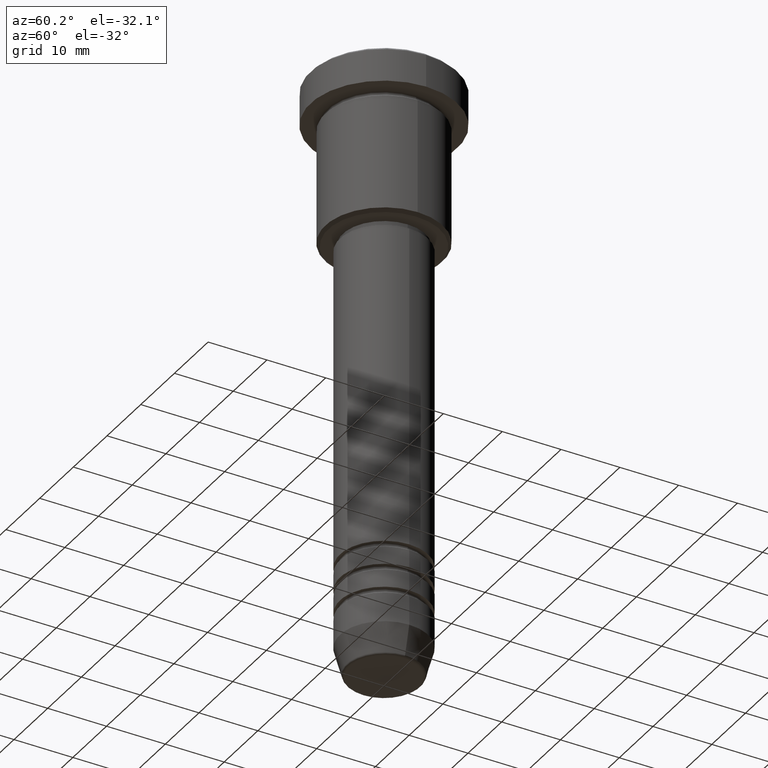
[diagram: clean part render]
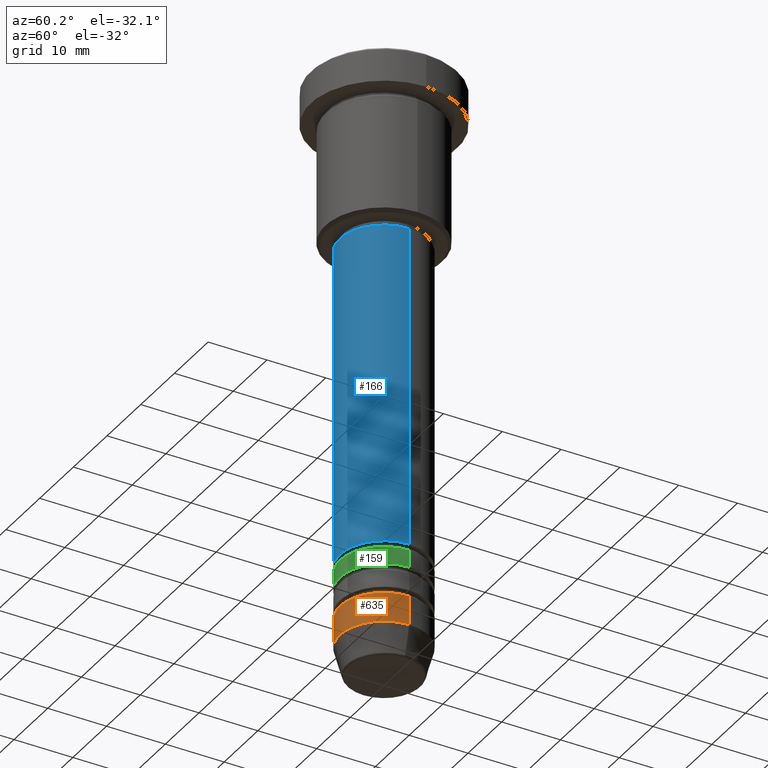
[diagram: same view with three faces highlighted in distinct colors, each labeled with its STEP entity id]
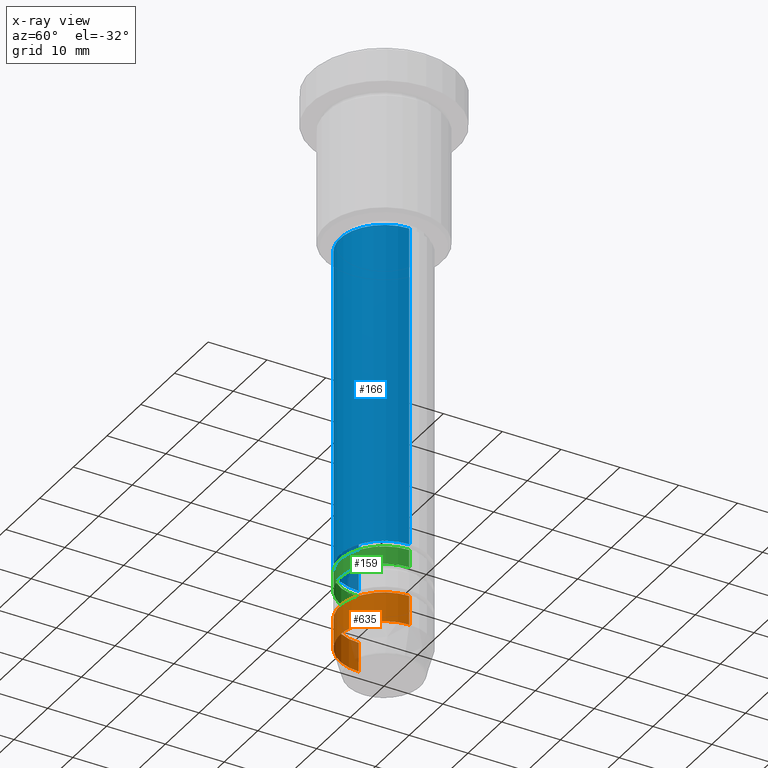
[diagram: x-ray of the same camera — body ghosted, the three highlighted faces saturated]
A machine part, auxiliary view with three faces highlighted in distinct colors.
The next image is the same camera in x-ray (body ghosted, the three faces saturated) — at least one of them is partly hidden behind the body in this view.
Their STEP definitions:

[orange] entity #635 — the highlighted cylindrical surface (partial cylindrical patch) has radius 7.5 mm, axis along (-0, -0, 1).
#46 = DIRECTION ( 'NONE',  ( 1.000000000000000000, 0.000000000000000000, 0.000000000000000000 ) ) ;
#72 = FACE_OUTER_BOUND ( 'NONE', #648, .T. ) ;
#93 = EDGE_CURVE ( 'NONE', #738, #176, #661, .T. ) ;
#127 = CARTESIAN_POINT ( 'NONE',  ( 0.000000000000000000, 0.000000000000000000, -92.00000000000000000 ) ) ;
#156 = CARTESIAN_POINT ( 'NONE',  ( 0.000000000000000000, 0.000000000000000000, -97.00000000000000000 ) ) ;
#176 = VERTEX_POINT ( 'NONE', #319 ) ;
#227 = CARTESIAN_POINT ( 'NONE',  ( -7.500000000000000000, 9.184850993605147944E-16, 0.000000000000000000 ) ) ;
#237 = LINE ( 'NONE', #698, #926 ) ;
#240 = EDGE_CURVE ( 'NONE', #738, #565, #1044, .T. ) ;
#255 = VERTEX_POINT ( 'NONE', #339 ) ;
#292 = AXIS2_PLACEMENT_3D ( 'NONE', #156, #515, #326 ) ;
#319 = CARTESIAN_POINT ( 'NONE',  ( 7.500000000000000000, 0.000000000000000000, -97.00000000000000000 ) ) ;
#326 = DIRECTION ( 'NONE',  ( 1.000000000000000000, 0.000000000000000000, 0.000000000000000000 ) ) ;
#336 = DIRECTION ( 'NONE',  ( -0.000000000000000000, -0.000000000000000000, 1.000000000000000000 ) ) ;
#339 = CARTESIAN_POINT ( 'NONE',  ( 7.500000000000000000, 0.000000000000000000, -92.00000000000000000 ) ) ;
#366 = ORIENTED_EDGE ( 'NONE', *, *, #240, .F. ) ;
#393 = EDGE_CURVE ( 'NONE', #565, #255, #519, .T. ) ;
#479 = AXIS2_PLACEMENT_3D ( 'NONE', #948, #969, #46 ) ;
#513 = EDGE_CURVE ( 'NONE', #176, #255, #237, .T. ) ;
#515 = DIRECTION ( 'NONE',  ( -0.000000000000000000, -0.000000000000000000, 1.000000000000000000 ) ) ;
#519 = CIRCLE ( 'NONE', #1029, 7.500000000000000000 ) ;
#542 = DIRECTION ( 'NONE',  ( -0.000000000000000000, -0.000000000000000000, 1.000000000000000000 ) ) ;
#560 = CARTESIAN_POINT ( 'NONE',  ( -7.500000000000000000, 9.184850993605147944E-16, -92.00000000000000000 ) ) ;
#565 = VERTEX_POINT ( 'NONE', #560 ) ;
#566 = ORIENTED_EDGE ( 'NONE', *, *, #393, .F. ) ;
#582 = DIRECTION ( 'NONE',  ( 1.000000000000000000, 0.000000000000000000, 0.000000000000000000 ) ) ;
#587 = CARTESIAN_POINT ( 'NONE',  ( -7.500000000000000000, 9.184850993605147944E-16, -97.00000000000000000 ) ) ;
#635 = ADVANCED_FACE ( 'NONE', ( #72 ), #697, .T. ) ;
#648 = EDGE_LOOP ( 'NONE', ( #366, #899, #656, #566 ) ) ;
#656 = ORIENTED_EDGE ( 'NONE', *, *, #513, .T. ) ;
#661 = CIRCLE ( 'NONE', #292, 7.500000000000000000 ) ;
#697 = CYLINDRICAL_SURFACE ( 'NONE', #479, 7.500000000000000000 ) ;
#698 = CARTESIAN_POINT ( 'NONE',  ( 7.500000000000000000, 0.000000000000000000, 0.000000000000000000 ) ) ;
#738 = VERTEX_POINT ( 'NONE', #587 ) ;
#899 = ORIENTED_EDGE ( 'NONE', *, *, #93, .T. ) ;
#926 = VECTOR ( 'NONE', #336, 1000.000000000000000 ) ;
#928 = DIRECTION ( 'NONE',  ( -0.000000000000000000, -0.000000000000000000, 1.000000000000000000 ) ) ;
#948 = CARTESIAN_POINT ( 'NONE',  ( 0.000000000000000000, 0.000000000000000000, 0.000000000000000000 ) ) ;
#969 = DIRECTION ( 'NONE',  ( -0.000000000000000000, -0.000000000000000000, 1.000000000000000000 ) ) ;
#988 = VECTOR ( 'NONE', #542, 1000.000000000000000 ) ;
#1029 = AXIS2_PLACEMENT_3D ( 'NONE', #127, #928, #582 ) ;
#1044 = LINE ( 'NONE', #227, #988 ) ;

[blue] entity #166 — the highlighted cylindrical surface (partial cylindrical patch) has radius 7.5 mm, axis along (-0, -0, 1).
#48 = CIRCLE ( 'NONE', #649, 7.500000000000000000 ) ;
#51 = DIRECTION ( 'NONE',  ( -0.000000000000000000, -0.000000000000000000, 1.000000000000000000 ) ) ;
#63 = DIRECTION ( 'NONE',  ( -0.000000000000000000, -0.000000000000000000, 1.000000000000000000 ) ) ;
#123 = CARTESIAN_POINT ( 'NONE',  ( 0.000000000000000000, 0.000000000000000000, -82.99999999999988631 ) ) ;
#139 = VECTOR ( 'NONE', #63, 1000.000000000000000 ) ;
#141 = VECTOR ( 'NONE', #964, 1000.000000000000000 ) ;
#163 = CYLINDRICAL_SURFACE ( 'NONE', #972, 7.500000000000000000 ) ;
#165 = CIRCLE ( 'NONE', #251, 7.500000000000000888 ) ;
#166 = ADVANCED_FACE ( 'NONE', ( #417 ), #163, .T. ) ;
#167 = DIRECTION ( 'NONE',  ( 1.000000000000000000, 0.000000000000000000, 0.000000000000000000 ) ) ;
#181 = EDGE_CURVE ( 'NONE', #940, #615, #1139, .T. ) ;
#212 = DIRECTION ( 'NONE',  ( 1.000000000000000000, 0.000000000000000000, 0.000000000000000000 ) ) ;
#235 = CARTESIAN_POINT ( 'NONE',  ( 7.500000000000000000, 0.000000000000000000, 0.000000000000000000 ) ) ;
#251 = AXIS2_PLACEMENT_3D ( 'NONE', #123, #484, #212 ) ;
#252 = ORIENTED_EDGE ( 'NONE', *, *, #181, .F. ) ;
#280 = CARTESIAN_POINT ( 'NONE',  ( -7.500000000000000000, 9.184850993605147944E-16, -27.99999999999998934 ) ) ;
#309 = DIRECTION ( 'NONE',  ( 1.000000000000000000, 0.000000000000000000, 0.000000000000000000 ) ) ;
#348 = VERTEX_POINT ( 'NONE', #541 ) ;
#400 = ORIENTED_EDGE ( 'NONE', *, *, #981, .T. ) ;
#416 = EDGE_LOOP ( 'NONE', ( #252, #400, #1023, #934 ) ) ;
#417 = FACE_OUTER_BOUND ( 'NONE', #416, .T. ) ;
#484 = DIRECTION ( 'NONE',  ( -0.000000000000000000, -0.000000000000000000, 1.000000000000000000 ) ) ;
#541 = CARTESIAN_POINT ( 'NONE',  ( 7.500000000000000888, 0.000000000000000000, -82.99999999999988631 ) ) ;
#615 = VERTEX_POINT ( 'NONE', #280 ) ;
#649 = AXIS2_PLACEMENT_3D ( 'NONE', #1148, #51, #309 ) ;
#655 = VERTEX_POINT ( 'NONE', #686 ) ;
#686 = CARTESIAN_POINT ( 'NONE',  ( 7.500000000000000000, 0.000000000000000000, -27.99999999999998934 ) ) ;
#788 = EDGE_CURVE ( 'NONE', #348, #655, #1055, .T. ) ;
#793 = DIRECTION ( 'NONE',  ( -0.000000000000000000, -0.000000000000000000, 1.000000000000000000 ) ) ;
#854 = CARTESIAN_POINT ( 'NONE',  ( -7.500000000000001776, 9.184850993605149917E-16, -82.99999999999988631 ) ) ;
#922 = EDGE_CURVE ( 'NONE', #615, #655, #48, .T. ) ;
#934 = ORIENTED_EDGE ( 'NONE', *, *, #922, .F. ) ;
#940 = VERTEX_POINT ( 'NONE', #854 ) ;
#964 = DIRECTION ( 'NONE',  ( -0.000000000000000000, -0.000000000000000000, 1.000000000000000000 ) ) ;
#967 = CARTESIAN_POINT ( 'NONE',  ( -7.500000000000000000, 9.184850993605147944E-16, 0.000000000000000000 ) ) ;
#972 = AXIS2_PLACEMENT_3D ( 'NONE', #1169, #793, #167 ) ;
#981 = EDGE_CURVE ( 'NONE', #940, #348, #165, .T. ) ;
#1023 = ORIENTED_EDGE ( 'NONE', *, *, #788, .T. ) ;
#1055 = LINE ( 'NONE', #235, #141 ) ;
#1139 = LINE ( 'NONE', #967, #139 ) ;
#1148 = CARTESIAN_POINT ( 'NONE',  ( 0.000000000000000000, 0.000000000000000000, -27.99999999999998934 ) ) ;
#1169 = CARTESIAN_POINT ( 'NONE',  ( 0.000000000000000000, 0.000000000000000000, 0.000000000000000000 ) ) ;

[green] entity #159 — the highlighted cylindrical surface (partial cylindrical patch) has radius 7.5 mm, axis along (-0, -0, 1).
#4 = CYLINDRICAL_SURFACE ( 'NONE', #593, 7.500000000000001776 ) ;
#59 = EDGE_CURVE ( 'NONE', #362, #808, #170, .T. ) ;
#105 = EDGE_CURVE ( 'NONE', #652, #808, #759, .T. ) ;
#113 = DIRECTION ( 'NONE',  ( -0.000000000000000000, -0.000000000000000000, 1.000000000000000000 ) ) ;
#125 = DIRECTION ( 'NONE',  ( -0.000000000000000000, -0.000000000000000000, 1.000000000000000000 ) ) ;
#159 = ADVANCED_FACE ( 'NONE', ( #532 ), #4, .T. ) ;
#170 = LINE ( 'NONE', #791, #373 ) ;
#216 = CARTESIAN_POINT ( 'NONE',  ( 0.000000000000000000, 0.000000000000000000, -86.99999999999991473 ) ) ;
#268 = ORIENTED_EDGE ( 'NONE', *, *, #936, .F. ) ;
#360 = CIRCLE ( 'NONE', #613, 7.500000000000002665 ) ;
#362 = VERTEX_POINT ( 'NONE', #557 ) ;
#373 = VECTOR ( 'NONE', #433, 1000.000000000000000 ) ;
#377 = CARTESIAN_POINT ( 'NONE',  ( -7.500000000000003553, 9.184850993605151889E-16, -86.99999999999991473 ) ) ;
#395 = DIRECTION ( 'NONE',  ( 1.000000000000000000, 0.000000000000000000, 0.000000000000000000 ) ) ;
#418 = EDGE_LOOP ( 'NONE', ( #268, #1108, #634, #835 ) ) ;
#424 = VECTOR ( 'NONE', #113, 1000.000000000000000 ) ;
#433 = DIRECTION ( 'NONE',  ( -0.000000000000000000, -0.000000000000000000, 1.000000000000000000 ) ) ;
#492 = AXIS2_PLACEMENT_3D ( 'NONE', #499, #859, #685 ) ;
#499 = CARTESIAN_POINT ( 'NONE',  ( 0.000000000000000000, 0.000000000000000000, -83.99999999999990052 ) ) ;
#532 = FACE_OUTER_BOUND ( 'NONE', #418, .T. ) ;
#557 = CARTESIAN_POINT ( 'NONE',  ( 7.500000000000002665, 0.000000000000000000, -86.99999999999991473 ) ) ;
#593 = AXIS2_PLACEMENT_3D ( 'NONE', #716, #1088, #395 ) ;
#613 = AXIS2_PLACEMENT_3D ( 'NONE', #216, #125, #664 ) ;
#616 = CARTESIAN_POINT ( 'NONE',  ( 7.500000000000000000, 0.000000000000000000, -83.99999999999990052 ) ) ;
#634 = ORIENTED_EDGE ( 'NONE', *, *, #59, .T. ) ;
#652 = VERTEX_POINT ( 'NONE', #1162 ) ;
#664 = DIRECTION ( 'NONE',  ( 1.000000000000000000, 0.000000000000000000, 0.000000000000000000 ) ) ;
#685 = DIRECTION ( 'NONE',  ( 1.000000000000000000, 0.000000000000000000, 0.000000000000000000 ) ) ;
#716 = CARTESIAN_POINT ( 'NONE',  ( 0.000000000000000000, 0.000000000000000000, 0.000000000000000000 ) ) ;
#759 = CIRCLE ( 'NONE', #492, 7.500000000000000000 ) ;
#791 = CARTESIAN_POINT ( 'NONE',  ( 7.500000000000001776, 0.000000000000000000, 0.000000000000000000 ) ) ;
#808 = VERTEX_POINT ( 'NONE', #616 ) ;
#835 = ORIENTED_EDGE ( 'NONE', *, *, #105, .F. ) ;
#859 = DIRECTION ( 'NONE',  ( -0.000000000000000000, -0.000000000000000000, 1.000000000000000000 ) ) ;
#921 = LINE ( 'NONE', #945, #424 ) ;
#936 = EDGE_CURVE ( 'NONE', #1080, #652, #921, .T. ) ;
#945 = CARTESIAN_POINT ( 'NONE',  ( -7.500000000000001776, 9.184850993605149917E-16, 0.000000000000000000 ) ) ;
#1080 = VERTEX_POINT ( 'NONE', #377 ) ;
#1088 = DIRECTION ( 'NONE',  ( -0.000000000000000000, -0.000000000000000000, 1.000000000000000000 ) ) ;
#1108 = ORIENTED_EDGE ( 'NONE', *, *, #1140, .T. ) ;
#1140 = EDGE_CURVE ( 'NONE', #1080, #362, #360, .T. ) ;
#1162 = CARTESIAN_POINT ( 'NONE',  ( -7.500000000000000000, 9.184850993605147944E-16, -83.99999999999990052 ) ) ;